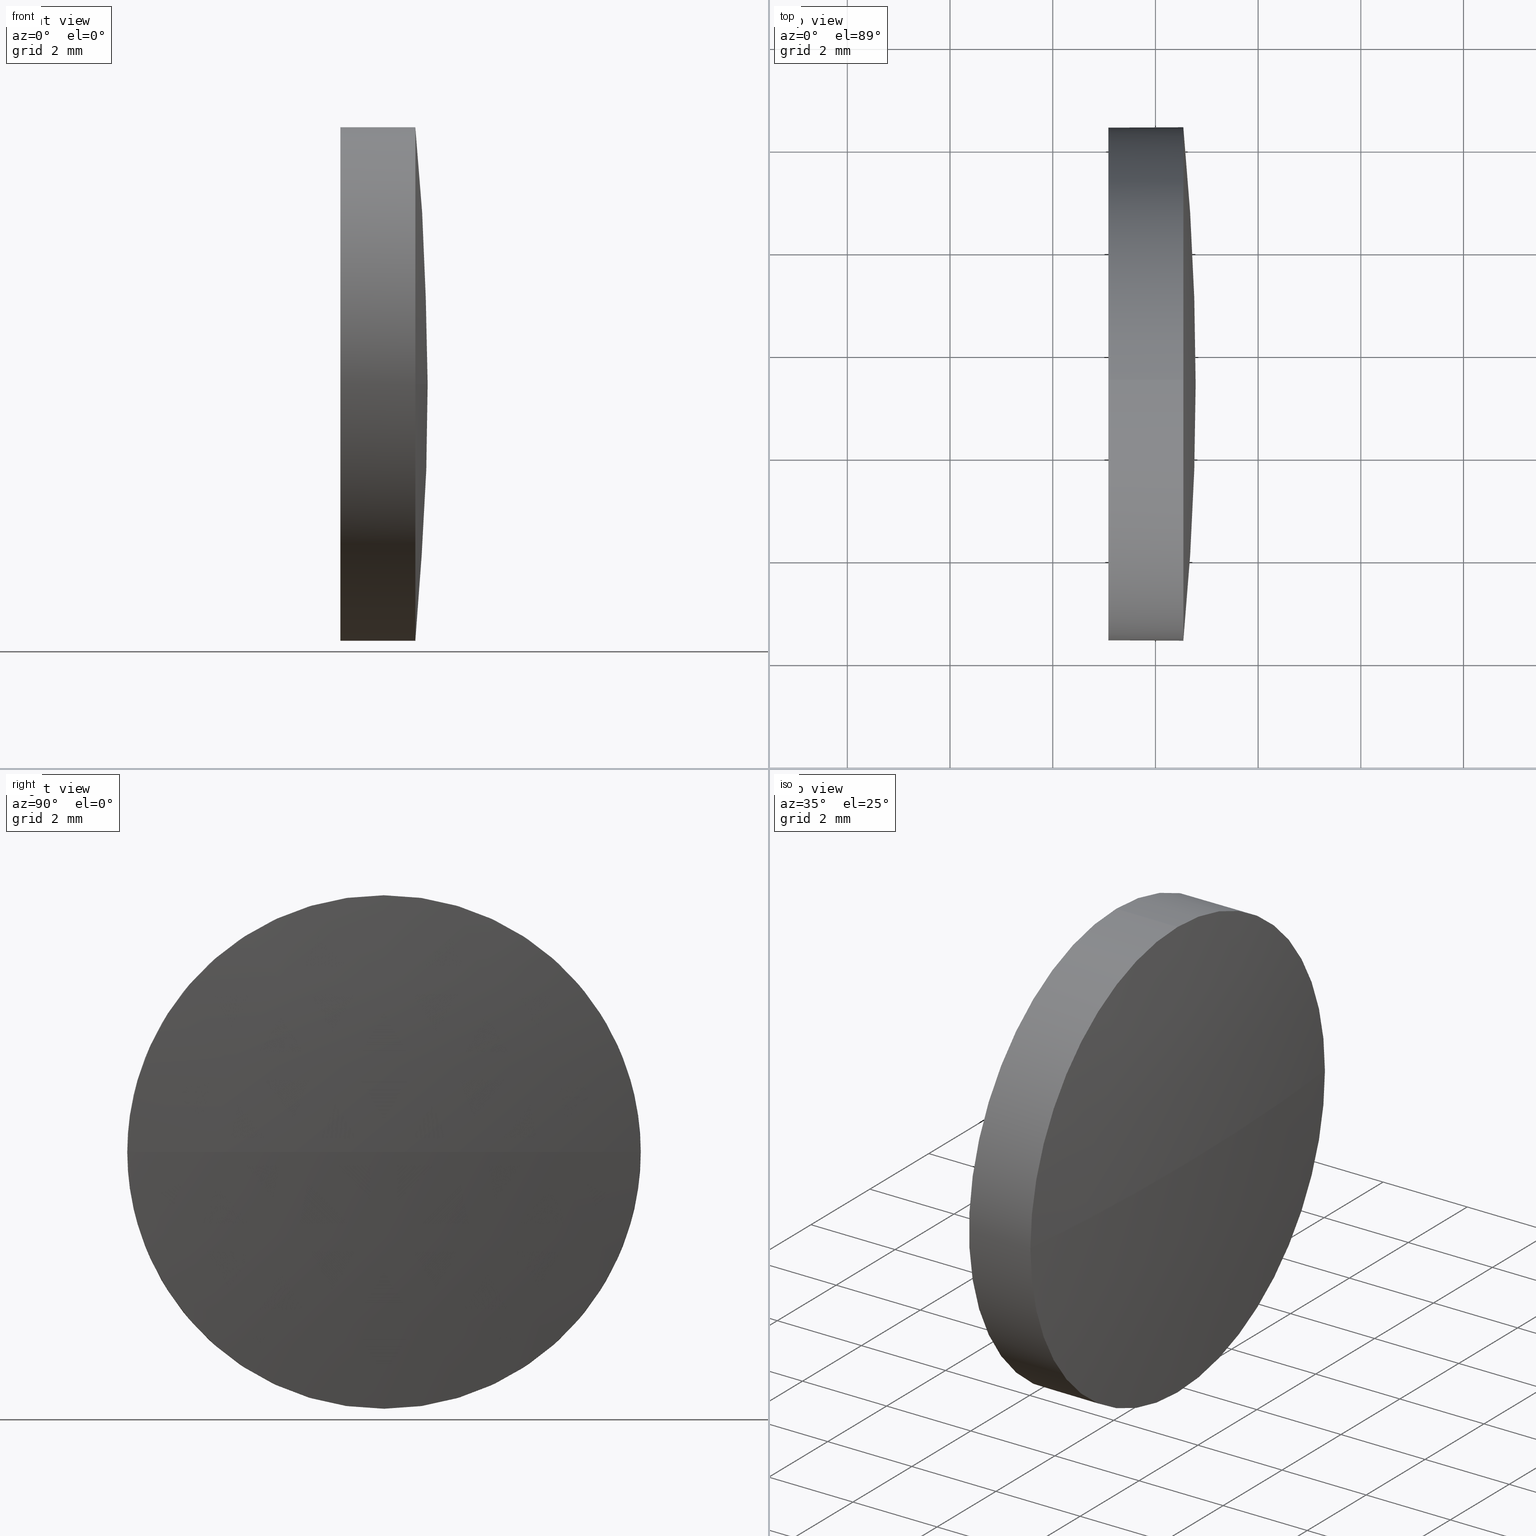
[diagram: canonical four-view strip — front | top / right | iso, engineering-drawing reading convention]
A machine part, canonical four-view strip (front | top / right | iso — engineering-drawing reading convention). The complete STEP part file that produces these views, byte-faithful:
ISO-10303-21;
HEADER;
FILE_DESCRIPTION (( 'STEP AP214' ),
    '1' );
FILE_NAME ('100194.STEP',
    '2019-05-22T01:36:52',
    ( '' ),
    ( '' ),
    'SwSTEP 2.0',
    'SolidWorks 2016',
    '' );
FILE_SCHEMA (( 'AUTOMOTIVE_DESIGN' ));
ENDSEC;

DATA;
#1 = EDGE_CURVE ( 'NONE', #105, #24, #130, .T. ) ;
#2 = DIRECTION ( 'NONE',  ( 0.0000000000000000000, 1.000000000000000000, 0.0000000000000000000 ) ) ;
#3 = PRESENTATION_LAYER_ASSIGNMENT (  '', '', ( #178 ) ) ;
#4 = MECHANICAL_DESIGN_GEOMETRIC_PRESENTATION_REPRESENTATION (  '', ( #178 ), #17 ) ;
#5 = APPLICATION_PROTOCOL_DEFINITION ( 'draft international standard', 'automotive_design', 1998, #62 ) ;
#6 = APPLICATION_CONTEXT ( 'automotive_design' ) ;
#7 = DIRECTION ( 'NONE',  ( 0.0000000000000000000, 0.0000000000000000000, -1.000000000000000000 ) ) ;
#8 = ADVANCED_BREP_SHAPE_REPRESENTATION ( '100194', ( #40, #126 ), #132 ) ;
#9 = PLANE ( 'NONE',  #38 ) ;
#10 = EDGE_CURVE ( 'NONE', #12, #34, #21, .T. ) ;
#11 = ADVANCED_FACE ( 'NONE', ( #88 ), #48, .T. ) ;
#12 = VERTEX_POINT ( 'NONE', #99 ) ;
#13 = VERTEX_POINT ( 'NONE', #22 ) ;
#14 = CARTESIAN_POINT ( 'NONE',  ( 1102.543462945326800, 183.3935781701384300, 0.0000000000000000000 ) ) ;
#15 = CIRCLE ( 'NONE', #68, 52.20333333333340400 ) ;
#16 = EDGE_CURVE ( 'NONE', #78, #174, #15, .T. ) ;
#17 =( GEOMETRIC_REPRESENTATION_CONTEXT ( 3 ) GLOBAL_UNCERTAINTY_ASSIGNED_CONTEXT ( ( #113 ) ) GLOBAL_UNIT_ASSIGNED_CONTEXT ( ( #176, #108, #123 ) ) REPRESENTATION_CONTEXT ( 'NONE', 'WORKASPACE' ) );
#18 = APPLICATION_PROTOCOL_DEFINITION ( 'draft international standard', 'automotive_design', 1998, #6 ) ;
#19 =( LENGTH_UNIT ( ) NAMED_UNIT ( * ) SI_UNIT ( .MILLI., .METRE. ) );
#20 = CARTESIAN_POINT ( 'NONE',  ( 1050.580129611993500, 183.3935781701377700, 0.0000000000000000000 ) ) ;
#21 = CIRCLE ( 'NONE', #85, 5.000000000000004400 ) ;
#22 = CARTESIAN_POINT ( 'NONE',  ( 1102.543462945326800, 183.3935781701384300, 5.000000000000004400 ) ) ;
#23 = AXIS2_PLACEMENT_3D ( 'NONE', #129, #72, #170 ) ;
#24 = VERTEX_POINT ( 'NONE', #180 ) ;
#25 = DIRECTION ( 'NONE',  ( -1.000000000000000000, -0.0000000000000000000, -0.0000000000000000000 ) ) ;
#26 = CIRCLE ( 'NONE', #23, 5.000000000000004400 ) ;
#27 = ORIENTED_EDGE ( 'NONE', *, *, #16, .F. ) ;
#28 = CARTESIAN_POINT ( 'NONE',  ( 1100.285790691261400, 183.3935781701384300, -5.000000000000004400 ) ) ;
#29 = ORIENTED_EDGE ( 'NONE', *, *, #119, .T. ) ;
#30 = DIRECTION ( 'NONE',  ( -0.0000000000000000000, 0.0000000000000000000, 1.000000000000000000 ) ) ;
#31 = CARTESIAN_POINT ( 'NONE',  ( 1101.083462945326800, 183.3935781701384300, 0.0000000000000000000 ) ) ;
#32 = MECHANICAL_DESIGN_GEOMETRIC_PRESENTATION_REPRESENTATION (  '', ( #96 ), #121 ) ;
#33 = SHAPE_DEFINITION_REPRESENTATION ( #107, #8 ) ;
#34 = VERTEX_POINT ( 'NONE', #91 ) ;
#35 = VECTOR ( 'NONE', #41, 1000.000000000000000 ) ;
#36 =( NAMED_UNIT ( * ) PLANE_ANGLE_UNIT ( ) SI_UNIT ( $, .RADIAN. ) );
#37 = CARTESIAN_POINT ( 'NONE',  ( 1100.285790691261400, 183.3935781701384300, 0.0000000000000000000 ) ) ;
#38 = AXIS2_PLACEMENT_3D ( 'NONE', #124, #181, #7 ) ;
#39 = ADVANCED_FACE ( 'NONE', ( #173 ), #93, .T. ) ;
#40 = MANIFOLD_SOLID_BREP ( '��ת2', #89 ) ;
#41 = DIRECTION ( 'NONE',  ( -1.000000000000000000, -0.0000000000000000000, -0.0000000000000000000 ) ) ;
#42 = CARTESIAN_POINT ( 'NONE',  ( 0.0000000000000000000, 0.0000000000000000000, 0.0000000000000000000 ) ) ;
#43 = AXIS2_PLACEMENT_3D ( 'NONE', #183, #25, #69 ) ;
#44 = DIRECTION ( 'NONE',  ( 0.0000000000000000000, 0.0000000000000000000, 1.000000000000000000 ) ) ;
#45 = PRODUCT_CONTEXT ( 'NONE', #62, 'mechanical' ) ;
#46 = EDGE_LOOP ( 'NONE', ( #56, #128 ) ) ;
#47 = DIRECTION ( 'NONE',  ( -1.000000000000000000, -0.0000000000000000000, -0.0000000000000000000 ) ) ;
#48 = SPHERICAL_SURFACE ( 'NONE', #77, 52.20333333333339700 ) ;
#49 = ADVANCED_FACE ( 'NONE', ( #142 ), #9, .F. ) ;
#50 = DIRECTION ( 'NONE',  ( 0.0000000000000000000, 0.0000000000000000000, 1.000000000000000000 ) ) ;
#51 = DIRECTION ( 'NONE',  ( 1.000000000000000000, 0.0000000000000000000, 0.0000000000000000000 ) ) ;
#52 = SURFACE_STYLE_FILL_AREA ( #158 ) ;
#53 = EDGE_LOOP ( 'NONE', ( #86, #112, #71, #90, #162 ) ) ;
#54 = DIRECTION ( 'NONE',  ( 0.0000000000000000000, 0.0000000000000000000, 1.000000000000000000 ) ) ;
#55 = AXIS2_PLACEMENT_3D ( 'NONE', #37, #166, #154 ) ;
#56 = ORIENTED_EDGE ( 'NONE', *, *, #1, .T. ) ;
#57 = PRODUCT ( '100194', '100194', '', ( #45 ) ) ;
#58 = COLOUR_RGB ( '',1.000000000000000000, 1.000000000000000000, 1.000000000000000000 ) ;
#59 = EDGE_LOOP ( 'NONE', ( #94, #146, #138, #101 ) ) ;
#60 = UNCERTAINTY_MEASURE_WITH_UNIT (LENGTH_MEASURE( 1.000000000000000100E-005 ), #79, 'distance_accuracy_value', 'NONE');
#61 = CIRCLE ( 'NONE', #167, 5.000000000000004400 ) ;
#62 = APPLICATION_CONTEXT ( 'automotive_design' ) ;
#63 = SURFACE_STYLE_USAGE ( .BOTH. , #140 ) ;
#64 = SURFACE_STYLE_USAGE ( .BOTH. , #109 ) ;
#65 = CIRCLE ( 'NONE', #184, 5.000000000000004400 ) ;
#66 = ORIENTED_EDGE ( 'NONE', *, *, #150, .F. ) ;
#67 = CIRCLE ( 'NONE', #160, 5.000000000000004400 ) ;
#68 = AXIS2_PLACEMENT_3D ( 'NONE', #81, #95, #92 ) ;
#69 = DIRECTION ( 'NONE',  ( 0.0000000000000000000, 0.0000000000000000000, 1.000000000000000000 ) ) ;
#70 = DIRECTION ( 'NONE',  ( -1.000000000000000000, -0.0000000000000000000, -0.0000000000000000000 ) ) ;
#71 = ORIENTED_EDGE ( 'NONE', *, *, #1, .F. ) ;
#72 = DIRECTION ( 'NONE',  ( -1.000000000000000000, -0.0000000000000000000, -0.0000000000000000000 ) ) ;
#73 = PRODUCT_DEFINITION_FORMATION_WITH_SPECIFIED_SOURCE ( '�κ�', '', #57, .NOT_KNOWN. ) ;
#74 = DIRECTION ( 'NONE',  ( -1.000000000000000000, -0.0000000000000000000, -0.0000000000000000000 ) ) ;
#75 = FACE_OUTER_BOUND ( 'NONE', #87, .T. ) ;
#76 = EDGE_CURVE ( 'NONE', #34, #174, #26, .T. ) ;
#77 = AXIS2_PLACEMENT_3D ( 'NONE', #20, #127, #165 ) ;
#78 = VERTEX_POINT ( 'NONE', #110 ) ;
#79 =( LENGTH_UNIT ( ) NAMED_UNIT ( * ) SI_UNIT ( .MILLI., .METRE. ) );
#80 =( NAMED_UNIT ( * ) SI_UNIT ( $, .STERADIAN. ) SOLID_ANGLE_UNIT ( ) );
#81 = CARTESIAN_POINT ( 'NONE',  ( 1050.580129611993500, 183.3935781701377700, 0.0000000000000000000 ) ) ;
#82 = ADVANCED_FACE ( 'NONE', ( #75 ), #177, .T. ) ;
#83 = DIRECTION ( 'NONE',  ( -0.0000000000000000000, 0.0000000000000000000, -1.000000000000000000 ) ) ;
#84 = CARTESIAN_POINT ( 'NONE',  ( 1102.543462945326800, 178.3935781701379100, -6.123233995736625300E-016 ) ) ;
#85 = AXIS2_PLACEMENT_3D ( 'NONE', #114, #143, #50 ) ;
#86 = ORIENTED_EDGE ( 'NONE', *, *, #10, .T. ) ;
#87 = EDGE_LOOP ( 'NONE', ( #97, #168, #29, #120, #66 ) ) ;
#88 = FACE_OUTER_BOUND ( 'NONE', #182, .T. ) ;
#89 = CLOSED_SHELL ( 'NONE', ( #39, #98, #11, #82, #49 ) ) ;
#90 = ORIENTED_EDGE ( 'NONE', *, *, #164, .F. ) ;
#91 = CARTESIAN_POINT ( 'NONE',  ( 1102.543462945326800, 183.3935781701384300, -5.000000000000004400 ) ) ;
#92 = DIRECTION ( 'NONE',  ( 0.0000000000000000000, 1.000000000000000000, 1.224646799147353200E-016 ) ) ;
#93 = CYLINDRICAL_SURFACE ( 'NONE', #55, 5.000000000000004400 ) ;
#94 = ORIENTED_EDGE ( 'NONE', *, *, #106, .F. ) ;
#95 = DIRECTION ( 'NONE',  ( 0.0000000000000000000, 1.224646799147353200E-016, -1.000000000000000000 ) ) ;
#96 = STYLED_ITEM ( 'NONE', ( #100 ), #40 ) ;
#97 = ORIENTED_EDGE ( 'NONE', *, *, #157, .F. ) ;
#98 = ADVANCED_FACE ( 'NONE', ( #151 ), #172, .T. ) ;
#99 = CARTESIAN_POINT ( 'NONE',  ( 1102.543462945326800, 188.3935781701383100, 0.0000000000000000000 ) ) ;
#100 = PRESENTATION_STYLE_ASSIGNMENT (( #64 ) ) ;
#101 = ORIENTED_EDGE ( 'NONE', *, *, #10, .F. ) ;
#102 = CARTESIAN_POINT ( 'NONE',  ( 1101.083462945326800, 183.3935781701384300, 5.000000000000004400 ) ) ;
#103 = AXIS2_PLACEMENT_3D ( 'NONE', #159, #83, #2 ) ;
#104 = CIRCLE ( 'NONE', #152, 52.20333333333337600 ) ;
#105 = VERTEX_POINT ( 'NONE', #102 ) ;
#106 = EDGE_CURVE ( 'NONE', #78, #12, #104, .T. ) ;
#107 = PRODUCT_DEFINITION_SHAPE ( 'NONE', 'NONE',  #134 ) ;
#108 =( NAMED_UNIT ( * ) PLANE_ANGLE_UNIT ( ) SI_UNIT ( $, .RADIAN. ) );
#109 = SURFACE_SIDE_STYLE ('',( #52 ) ) ;
#110 = CARTESIAN_POINT ( 'NONE',  ( 1102.783462945326800, 183.3935781701377700, 0.0000000000000000000 ) ) ;
#111 = PRESENTATION_STYLE_ASSIGNMENT (( #63 ) ) ;
#112 = ORIENTED_EDGE ( 'NONE', *, *, #157, .T. ) ;
#113 = UNCERTAINTY_MEASURE_WITH_UNIT (LENGTH_MEASURE( 1.000000000000000100E-005 ), #176, 'distance_accuracy_value', 'NONE');
#114 = CARTESIAN_POINT ( 'NONE',  ( 1102.543462945326800, 183.3935781701384300, 0.0000000000000000000 ) ) ;
#115 = SURFACE_STYLE_FILL_AREA ( #137 ) ;
#116 = DIRECTION ( 'NONE',  ( -1.000000000000000000, -0.0000000000000000000, -0.0000000000000000000 ) ) ;
#117 = DIRECTION ( 'NONE',  ( -1.000000000000000000, -0.0000000000000000000, -0.0000000000000000000 ) ) ;
#118 = FILL_AREA_STYLE_COLOUR ( '', #58 ) ;
#119 = EDGE_CURVE ( 'NONE', #174, #13, #61, .T. ) ;
#120 = ORIENTED_EDGE ( 'NONE', *, *, #164, .T. ) ;
#121 =( GEOMETRIC_REPRESENTATION_CONTEXT ( 3 ) GLOBAL_UNCERTAINTY_ASSIGNED_CONTEXT ( ( #60 ) ) GLOBAL_UNIT_ASSIGNED_CONTEXT ( ( #79, #185, #80 ) ) REPRESENTATION_CONTEXT ( 'NONE', 'WORKASPACE' ) );
#122 = DIRECTION ( 'NONE',  ( 0.0000000000000000000, 0.0000000000000000000, 1.000000000000000000 ) ) ;
#123 =( NAMED_UNIT ( * ) SI_UNIT ( $, .STERADIAN. ) SOLID_ANGLE_UNIT ( ) );
#124 = CARTESIAN_POINT ( 'NONE',  ( 1101.083462945326800, 183.3935781701384300, 0.0000000000000000000 ) ) ;
#125 = CARTESIAN_POINT ( 'NONE',  ( 1100.285790691261400, 183.3935781701384300, 0.0000000000000000000 ) ) ;
#126 = AXIS2_PLACEMENT_3D ( 'NONE', #42, #44, #153 ) ;
#127 = DIRECTION ( 'NONE',  ( -0.0000000000000000000, 0.0000000000000000000, -1.000000000000000000 ) ) ;
#128 = ORIENTED_EDGE ( 'NONE', *, *, #150, .T. ) ;
#129 = CARTESIAN_POINT ( 'NONE',  ( 1102.543462945326800, 183.3935781701384300, 0.0000000000000000000 ) ) ;
#130 = CIRCLE ( 'NONE', #43, 5.000000000000004400 ) ;
#131 = DIRECTION ( 'NONE',  ( 0.0000000000000000000, 0.0000000000000000000, 1.000000000000000000 ) ) ;
#132 =( GEOMETRIC_REPRESENTATION_CONTEXT ( 3 ) GLOBAL_UNCERTAINTY_ASSIGNED_CONTEXT ( ( #163 ) ) GLOBAL_UNIT_ASSIGNED_CONTEXT ( ( #19, #36, #179 ) ) REPRESENTATION_CONTEXT ( 'NONE', 'WORKASPACE' ) );
#133 = DIRECTION ( 'NONE',  ( 0.0000000000000000000, 0.0000000000000000000, 1.000000000000000000 ) ) ;
#134 = PRODUCT_DEFINITION ( 'δ֪', '', #73, #186 ) ;
#135 = COLOUR_RGB ( '',1.000000000000000000, 1.000000000000000000, 1.000000000000000000 ) ;
#136 = ORIENTED_EDGE ( 'NONE', *, *, #175, .F. ) ;
#137 = FILL_AREA_STYLE ('',( #118 ) ) ;
#138 = ORIENTED_EDGE ( 'NONE', *, *, #76, .F. ) ;
#139 = PRESENTATION_LAYER_ASSIGNMENT (  '', '', ( #96 ) ) ;
#140 = SURFACE_SIDE_STYLE ('',( #115 ) ) ;
#141 = ORIENTED_EDGE ( 'NONE', *, *, #106, .T. ) ;
#142 = FACE_OUTER_BOUND ( 'NONE', #46, .T. ) ;
#143 = DIRECTION ( 'NONE',  ( -1.000000000000000000, -0.0000000000000000000, -0.0000000000000000000 ) ) ;
#144 = AXIS2_PLACEMENT_3D ( 'NONE', #125, #47, #133 ) ;
#145 = VECTOR ( 'NONE', #74, 1000.000000000000000 ) ;
#146 = ORIENTED_EDGE ( 'NONE', *, *, #16, .T. ) ;
#147 = CARTESIAN_POINT ( 'NONE',  ( 1050.580129611993500, 183.3935781701377700, 0.0000000000000000000 ) ) ;
#148 = LINE ( 'NONE', #149, #145 ) ;
#149 = CARTESIAN_POINT ( 'NONE',  ( 1100.285790691261400, 183.3935781701384300, 5.000000000000004400 ) ) ;
#150 = EDGE_CURVE ( 'NONE', #24, #105, #67, .T. ) ;
#151 = FACE_OUTER_BOUND ( 'NONE', #59, .T. ) ;
#152 = AXIS2_PLACEMENT_3D ( 'NONE', #147, #30, #51 ) ;
#153 = DIRECTION ( 'NONE',  ( 1.000000000000000000, 0.0000000000000000000, 0.0000000000000000000 ) ) ;
#154 = DIRECTION ( 'NONE',  ( 0.0000000000000000000, 0.0000000000000000000, 1.000000000000000000 ) ) ;
#155 = FILL_AREA_STYLE_COLOUR ( '', #135 ) ;
#156 = PRODUCT_RELATED_PRODUCT_CATEGORY ( 'part', '', ( #57 ) ) ;
#157 = EDGE_CURVE ( 'NONE', #34, #24, #169, .T. ) ;
#158 = FILL_AREA_STYLE ('',( #155 ) ) ;
#159 = CARTESIAN_POINT ( 'NONE',  ( 1050.580129611993500, 183.3935781701377700, 0.0000000000000000000 ) ) ;
#160 = AXIS2_PLACEMENT_3D ( 'NONE', #31, #117, #54 ) ;
#161 = CARTESIAN_POINT ( 'NONE',  ( 1102.543462945326800, 183.3935781701384300, 0.0000000000000000000 ) ) ;
#162 = ORIENTED_EDGE ( 'NONE', *, *, #175, .T. ) ;
#163 = UNCERTAINTY_MEASURE_WITH_UNIT (LENGTH_MEASURE( 1.000000000000000100E-005 ), #19, 'distance_accuracy_value', 'NONE');
#164 = EDGE_CURVE ( 'NONE', #13, #105, #148, .T. ) ;
#165 = DIRECTION ( 'NONE',  ( 0.0000000000000000000, 1.000000000000000000, 0.0000000000000000000 ) ) ;
#166 = DIRECTION ( 'NONE',  ( -1.000000000000000000, -0.0000000000000000000, -0.0000000000000000000 ) ) ;
#167 = AXIS2_PLACEMENT_3D ( 'NONE', #14, #116, #131 ) ;
#168 = ORIENTED_EDGE ( 'NONE', *, *, #76, .T. ) ;
#169 = LINE ( 'NONE', #28, #35 ) ;
#170 = DIRECTION ( 'NONE',  ( 0.0000000000000000000, 0.0000000000000000000, 1.000000000000000000 ) ) ;
#171 = ORIENTED_EDGE ( 'NONE', *, *, #119, .F. ) ;
#172 = SPHERICAL_SURFACE ( 'NONE', #103, 52.20333333333339700 ) ;
#173 = FACE_OUTER_BOUND ( 'NONE', #53, .T. ) ;
#174 = VERTEX_POINT ( 'NONE', #84 ) ;
#175 = EDGE_CURVE ( 'NONE', #13, #12, #65, .T. ) ;
#176 =( LENGTH_UNIT ( ) NAMED_UNIT ( * ) SI_UNIT ( .MILLI., .METRE. ) );
#177 = CYLINDRICAL_SURFACE ( 'NONE', #144, 5.000000000000004400 ) ;
#178 = STYLED_ITEM ( 'NONE', ( #111 ), #8 ) ;
#179 =( NAMED_UNIT ( * ) SI_UNIT ( $, .STERADIAN. ) SOLID_ANGLE_UNIT ( ) );
#180 = CARTESIAN_POINT ( 'NONE',  ( 1101.083462945326800, 183.3935781701384300, -5.000000000000004400 ) ) ;
#181 = DIRECTION ( 'NONE',  ( 1.000000000000000000, 0.0000000000000000000, 0.0000000000000000000 ) ) ;
#182 = EDGE_LOOP ( 'NONE', ( #27, #141, #136, #171 ) ) ;
#183 = CARTESIAN_POINT ( 'NONE',  ( 1101.083462945326800, 183.3935781701384300, 0.0000000000000000000 ) ) ;
#184 = AXIS2_PLACEMENT_3D ( 'NONE', #161, #70, #122 ) ;
#185 =( NAMED_UNIT ( * ) PLANE_ANGLE_UNIT ( ) SI_UNIT ( $, .RADIAN. ) );
#186 = PRODUCT_DEFINITION_CONTEXT ( 'detailed design', #6, 'design' ) ;
ENDSEC;
END-ISO-10303-21;
